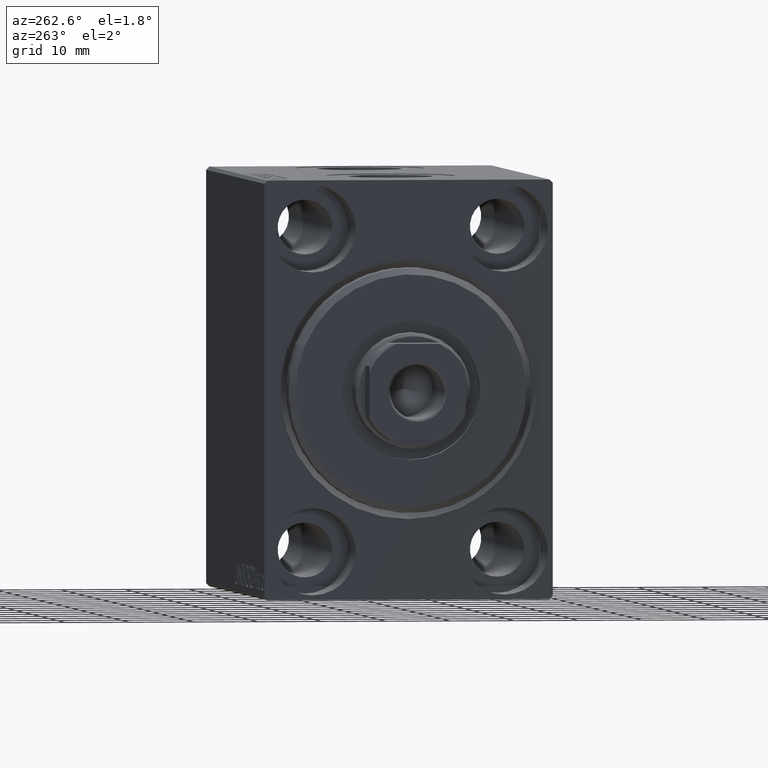
[diagram: clean part render]
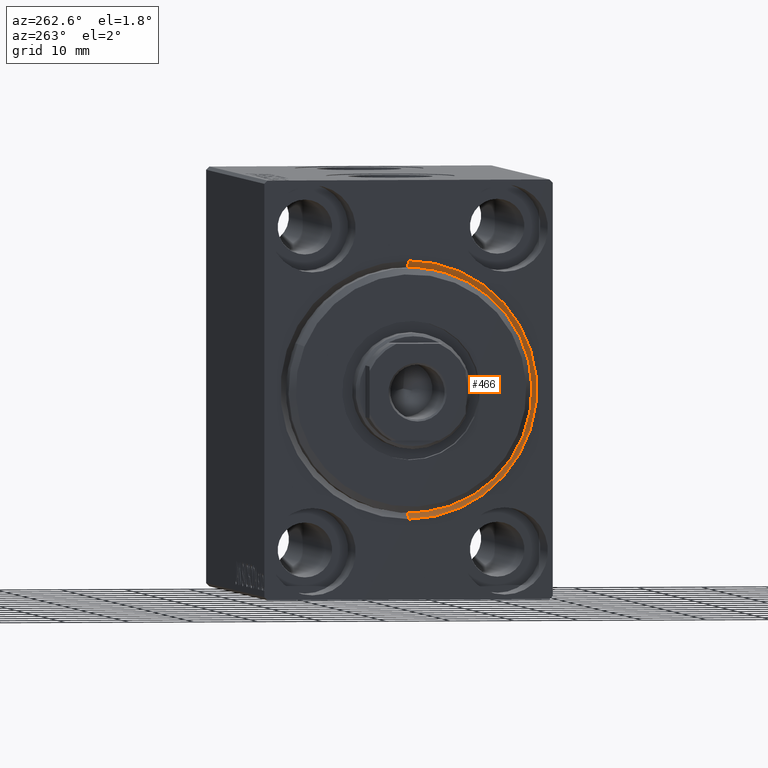
[diagram: same view with one face highlighted and labeled with its STEP entity id]
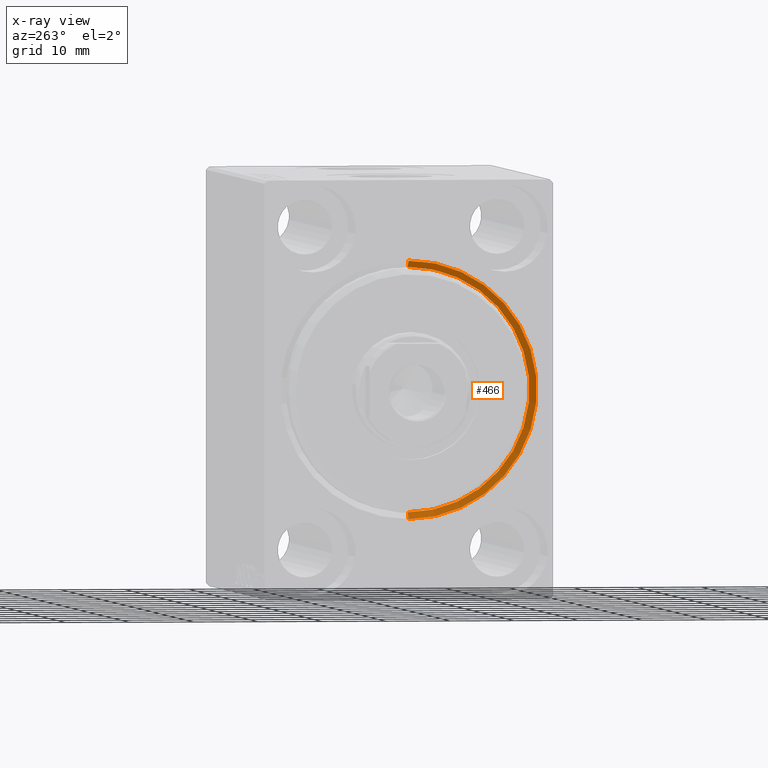
[diagram: x-ray of the same camera — body ghosted, the highlighted face saturated]
A machine part, auxiliary view. The second image highlights one B-rep face of the part: STEP entity #466.
The next image is the same camera in x-ray: the body ghosted, the highlighted face saturated — about 0% of this face is hidden behind the body in this view.
In plain terms, the highlighted conical surface has half-angle 45 deg.
Its self-contained STEP definition (entity closure, byte-faithful):
#466 = ADVANCED_FACE ( 'NONE', ( #23303 ), #5020, .F. ) ;
#920 = DIRECTION ( 'NONE',  ( 0.000000000000000000, 0.000000000000000000, -1.000000000000000000 ) ) ;
#5020 = CONICAL_SURFACE ( 'NONE', #17086, 19.00000000000000000, 0.7853981633974500554 ) ;
#6178 = DIRECTION ( 'NONE',  ( 0.000000000000000000, 0.000000000000000000, 1.000000000000000000 ) ) ;
#6276 = CARTESIAN_POINT ( 'NONE',  ( 0.000000000000000000, 2.449293598294706907E-15, -20.00000000000000355 ) ) ;
#6987 = ORIENTED_EDGE ( 'NONE', *, *, #31564, .F. ) ;
#8919 = CARTESIAN_POINT ( 'NONE',  ( 1.000000000000000888, 0.000000000000000000, 0.000000000000000000 ) ) ;
#9356 = DIRECTION ( 'NONE',  ( 0.000000000000000000, 0.000000000000000000, -1.000000000000000000 ) ) ;
#9653 = VERTEX_POINT ( 'NONE', #27152 ) ;
#11106 = VERTEX_POINT ( 'NONE', #6276 ) ;
#11736 = VERTEX_POINT ( 'NONE', #12789 ) ;
#12789 = CARTESIAN_POINT ( 'NONE',  ( 0.000000000000000000, 0.000000000000000000, 20.00000000000000355 ) ) ;
#14243 = LINE ( 'NONE', #23804, #42440 ) ;
#15345 = ORIENTED_EDGE ( 'NONE', *, *, #29903, .T. ) ;
#16030 = DIRECTION ( 'NONE',  ( -1.000000000000000000, 0.000000000000000000, 0.000000000000000000 ) ) ;
#17086 = AXIS2_PLACEMENT_3D ( 'NONE', #43324, #23090, #6178 ) ;
#17834 = CARTESIAN_POINT ( 'NONE',  ( 0.000000000000000000, 0.000000000000000000, 0.000000000000000000 ) ) ;
#17915 = AXIS2_PLACEMENT_3D ( 'NONE', #17834, #31401, #920 ) ;
#18104 = CIRCLE ( 'NONE', #42962, 19.00000000000000000 ) ;
#18306 = CARTESIAN_POINT ( 'NONE',  ( 1.000000000000000888, 0.000000000000000000, 19.00000000000000000 ) ) ;
#18969 = EDGE_LOOP ( 'NONE', ( #26506, #15345, #27554, #6987 ) ) ;
#22372 = EDGE_CURVE ( 'NONE', #9653, #39583, #18104, .T. ) ;
#23090 = DIRECTION ( 'NONE',  ( -1.000000000000000000, 0.000000000000000000, 0.000000000000000000 ) ) ;
#23303 = FACE_OUTER_BOUND ( 'NONE', #18969, .T. ) ;
#23804 = CARTESIAN_POINT ( 'NONE',  ( 1.000000000000000888, 2.326828918379970970E-15, -19.00000000000000000 ) ) ;
#24323 = LINE ( 'NONE', #18306, #33962 ) ;
#24755 = DIRECTION ( 'NONE',  ( -0.7071067811865463515, 0.000000000000000000, 0.7071067811865487940 ) ) ;
#26506 = ORIENTED_EDGE ( 'NONE', *, *, #22372, .F. ) ;
#27152 = CARTESIAN_POINT ( 'NONE',  ( 1.000000000000000888, 2.326828918379970970E-15, -19.00000000000000000 ) ) ;
#27554 = ORIENTED_EDGE ( 'NONE', *, *, #43272, .F. ) ;
#27811 = DIRECTION ( 'NONE',  ( -0.7071067811865463515, 8.659560562354948882E-17, -0.7071067811865487940 ) ) ;
#28578 = CIRCLE ( 'NONE', #17915, 20.00000000000000355 ) ;
#28914 = CARTESIAN_POINT ( 'NONE',  ( 1.000000000000000888, 0.000000000000000000, 19.00000000000000000 ) ) ;
#29903 = EDGE_CURVE ( 'NONE', #9653, #11106, #14243, .T. ) ;
#31401 = DIRECTION ( 'NONE',  ( 1.000000000000000000, 0.000000000000000000, 0.000000000000000000 ) ) ;
#31564 = EDGE_CURVE ( 'NONE', #39583, #11736, #24323, .T. ) ;
#33962 = VECTOR ( 'NONE', #24755, 1000.000000000000000 ) ;
#39583 = VERTEX_POINT ( 'NONE', #28914 ) ;
#42440 = VECTOR ( 'NONE', #27811, 1000.000000000000000 ) ;
#42962 = AXIS2_PLACEMENT_3D ( 'NONE', #8919, #16030, #9356 ) ;
#43272 = EDGE_CURVE ( 'NONE', #11736, #11106, #28578, .T. ) ;
#43324 = CARTESIAN_POINT ( 'NONE',  ( 1.000000000000000888, 0.000000000000000000, 0.000000000000000000 ) ) ;